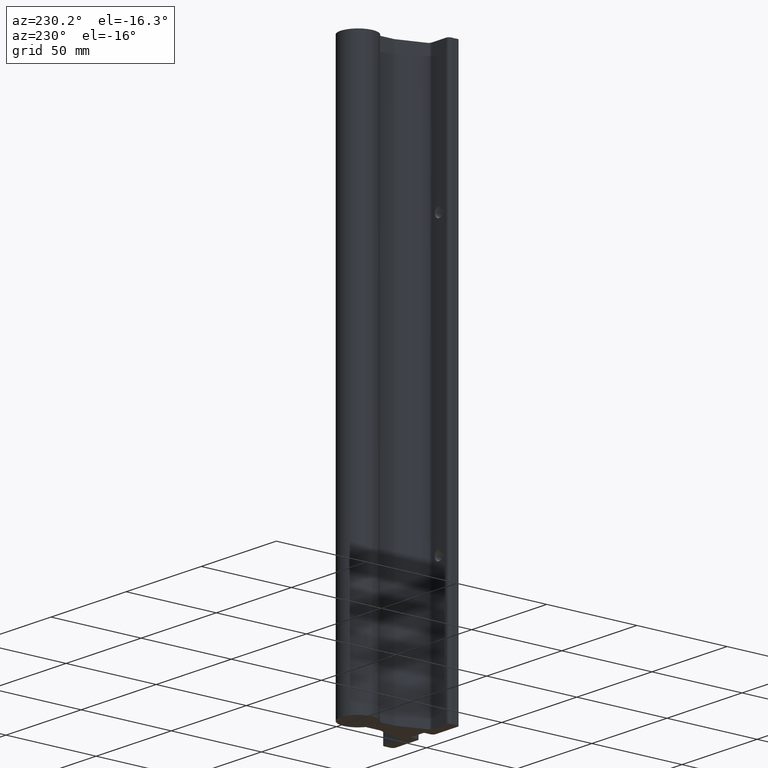
[diagram: clean part render]
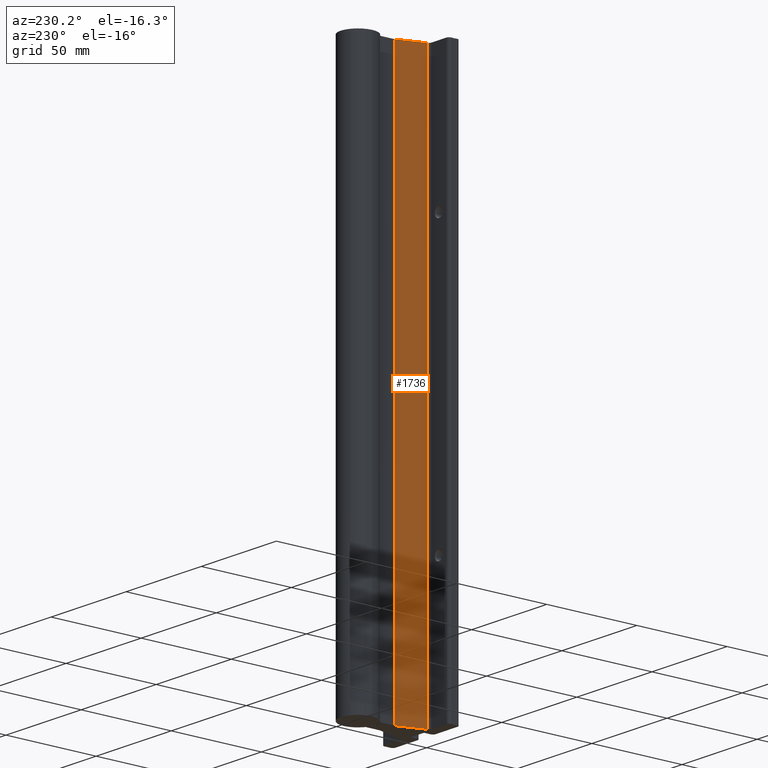
[diagram: same view with one face highlighted and labeled with its STEP entity id]
A machine part, auxiliary view. The second image highlights one B-rep face of the part: STEP entity #1736.
In plain terms, the highlighted planar face has unit normal (-0.9511, 0.309, 0).
Its self-contained STEP definition (entity closure, byte-faithful):
#117 = CARTESIAN_POINT ( 'NONE',  ( -0.1905589677000024129, 0.8519652309999998785, -12.00000000000000178 ) ) ;
#159 = DIRECTION ( 'NONE',  ( 0.3090169943511710260, 0.9510565163028790181, -0.000000000000000000 ) ) ;
#420 = LINE ( 'NONE', #117, #2036 ) ;
#471 = EDGE_LOOP ( 'NONE', ( #3514, #1022, #3807, #3697 ) ) ;
#524 = AXIS2_PLACEMENT_3D ( 'NONE', #2098, #1179, #3005 ) ;
#663 = CARTESIAN_POINT ( 'NONE',  ( -0.1905589677000024129, 0.8519652309999998785, -14.10463218188033174 ) ) ;
#671 = CARTESIAN_POINT ( 'NONE',  ( -0.3721172034000003181, 0.2931864378999994303, -12.00000000000000178 ) ) ;
#701 = LINE ( 'NONE', #663, #1775 ) ;
#983 = CARTESIAN_POINT ( 'NONE',  ( -0.3721172034000003181, 0.2931864378999993193, -14.10463218188033174 ) ) ;
#1022 = ORIENTED_EDGE ( 'NONE', *, *, #2963, .T. ) ;
#1179 = DIRECTION ( 'NONE',  ( -0.9510565163028790181, 0.3090169943511710260, 0.000000000000000000 ) ) ;
#1315 = VERTEX_POINT ( 'NONE', #671 ) ;
#1736 = ADVANCED_FACE ( 'NONE', ( #2767 ), #1790, .T. ) ;
#1775 = VECTOR ( 'NONE', #3077, 39.37007874015748143 ) ;
#1790 = PLANE ( 'NONE',  #524 ) ;
#1839 = VERTEX_POINT ( 'NONE', #3424 ) ;
#1920 = EDGE_CURVE ( 'NONE', #1315, #1839, #420, .T. ) ;
#1961 = VECTOR ( 'NONE', #2172, 39.37007874015748143 ) ;
#1992 = CARTESIAN_POINT ( 'NONE',  ( -0.3721172034000003737, 0.2931864378999993193, 0.000000000000000000 ) ) ;
#2036 = VECTOR ( 'NONE', #159, 39.37007874015748143 ) ;
#2098 = CARTESIAN_POINT ( 'NONE',  ( -0.1905589677000024129, 0.8519652309999998785, -14.10463218188033174 ) ) ;
#2172 = DIRECTION ( 'NONE',  ( 0.000000000000000000, 0.000000000000000000, 1.000000000000000000 ) ) ;
#2191 = VERTEX_POINT ( 'NONE', #3319 ) ;
#2328 = EDGE_CURVE ( 'NONE', #1839, #2191, #701, .T. ) ;
#2422 = LINE ( 'NONE', #983, #1961 ) ;
#2461 = CARTESIAN_POINT ( 'NONE',  ( -0.1905589677000024129, 0.8519652309999998785, 0.000000000000000000 ) ) ;
#2767 = FACE_OUTER_BOUND ( 'NONE', #471, .T. ) ;
#2943 = EDGE_CURVE ( 'NONE', #2191, #3690, #3340, .T. ) ;
#2963 = EDGE_CURVE ( 'NONE', #1315, #3690, #2422, .T. ) ;
#3005 = DIRECTION ( 'NONE',  ( -0.3090169943511710260, -0.9510565163028790181, 0.000000000000000000 ) ) ;
#3077 = DIRECTION ( 'NONE',  ( 0.000000000000000000, 0.000000000000000000, 1.000000000000000000 ) ) ;
#3319 = CARTESIAN_POINT ( 'NONE',  ( -0.1905589677000024129, 0.8519652309999998785, 0.000000000000000000 ) ) ;
#3340 = LINE ( 'NONE', #2461, #3538 ) ;
#3384 = DIRECTION ( 'NONE',  ( -0.3090169943511710260, -0.9510565163028790181, 0.000000000000000000 ) ) ;
#3424 = CARTESIAN_POINT ( 'NONE',  ( -0.1905589677000024129, 0.8519652309999998785, -12.00000000000000178 ) ) ;
#3514 = ORIENTED_EDGE ( 'NONE', *, *, #1920, .F. ) ;
#3538 = VECTOR ( 'NONE', #3384, 39.37007874015748143 ) ;
#3690 = VERTEX_POINT ( 'NONE', #1992 ) ;
#3697 = ORIENTED_EDGE ( 'NONE', *, *, #2328, .F. ) ;
#3807 = ORIENTED_EDGE ( 'NONE', *, *, #2943, .F. ) ;